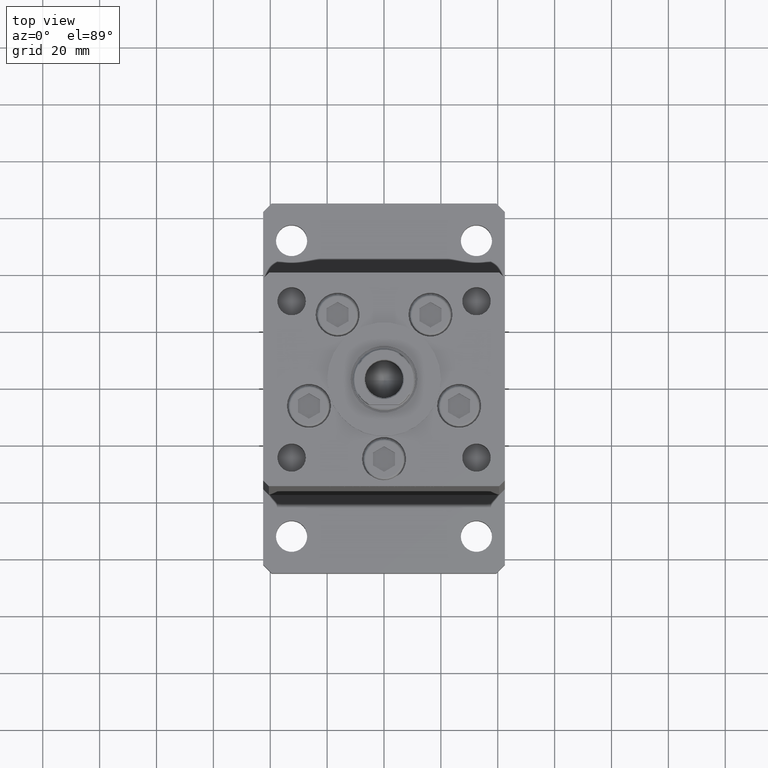
[diagram: clean part render]
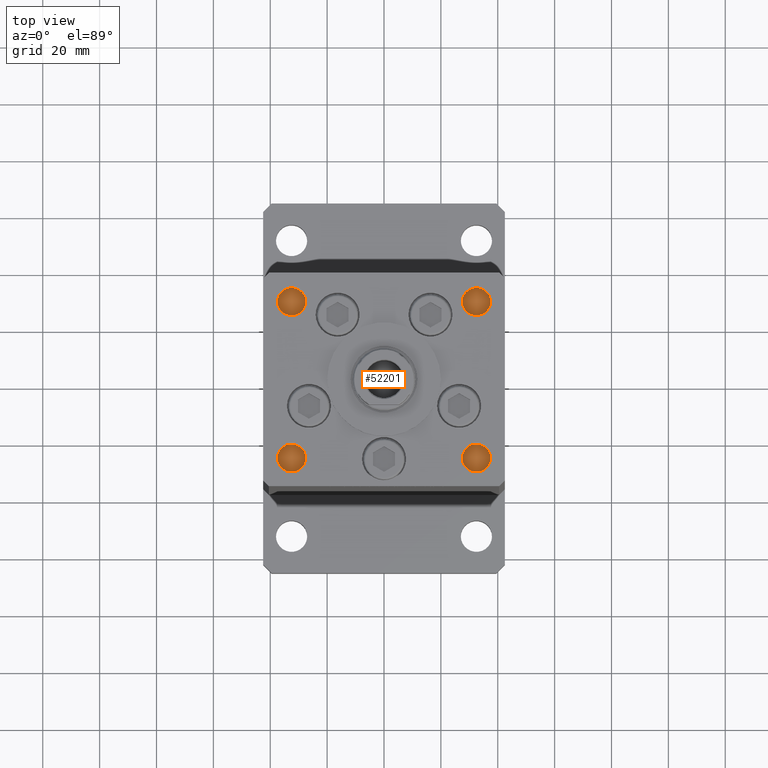
[diagram: same view with one face highlighted and labeled with its STEP entity id]
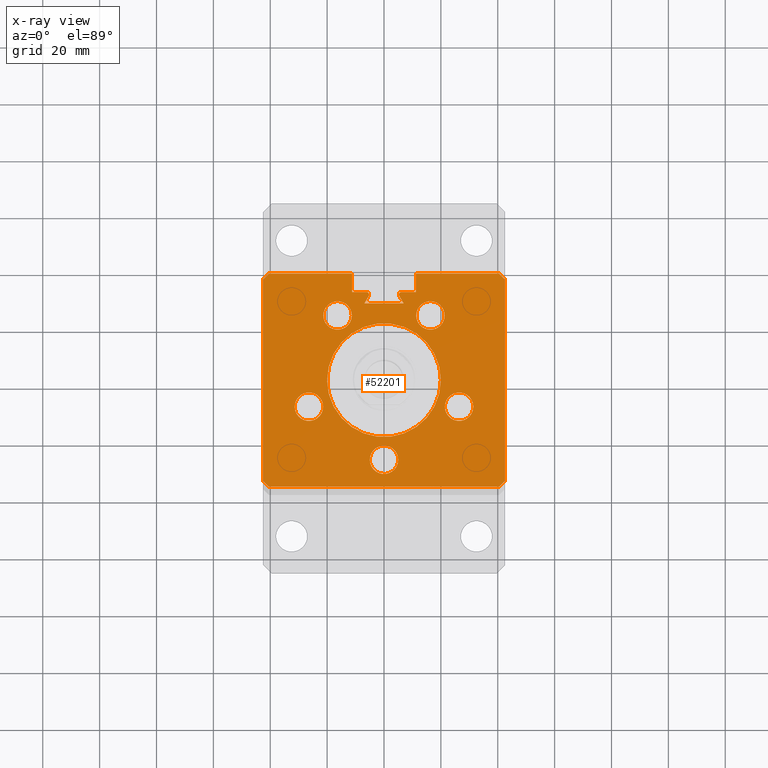
[diagram: x-ray of the same camera — body ghosted, the highlighted face saturated]
A machine part, top view. The second image highlights one B-rep face of the part: STEP entity #52201.
The next image is the same camera in x-ray: the body ghosted, the highlighted face saturated — about 0% of this face is hidden behind the body in this view.
In plain terms, the highlighted planar face has unit normal (0, 0, -1).
Its self-contained STEP definition (entity closure, byte-faithful):
#96 = VERTEX_POINT ( 'NONE', #39793 ) ;
#117 = VECTOR ( 'NONE', #47669, 1000.000000000000114 ) ;
#163 = CARTESIAN_POINT ( 'NONE',  ( 21.32291334290543006, 22.75000000000000355, 148.5000000000000000 ) ) ;
#352 = VERTEX_POINT ( 'NONE', #51078 ) ;
#760 = EDGE_CURVE ( 'NONE', #11827, #34986, #33820, .T. ) ;
#1173 = DIRECTION ( 'NONE',  ( 1.000000000000000000, 0.000000000000000000, 0.000000000000000000 ) ) ;
#1189 = AXIS2_PLACEMENT_3D ( 'NONE', #25039, #37401, #8299 ) ;
#1462 = VECTOR ( 'NONE', #8402, 1000.000000000000114 ) ;
#1502 = CARTESIAN_POINT ( 'NONE',  ( -26.39865316429777664, -9.333333333333333925, 148.5000000000000000 ) ) ;
#2123 = CARTESIAN_POINT ( 'NONE',  ( 40.50000000000000000, 37.50000000000000711, 148.5000000000000000 ) ) ;
#2842 = CARTESIAN_POINT ( 'NONE',  ( 0.000000000000000000, 30.99999999999999289, 148.5000000000000000 ) ) ;
#2861 = VECTOR ( 'NONE', #37732, 1000.000000000000000 ) ;
#3047 = FACE_BOUND ( 'NONE', #17282, .T. ) ;
#3194 = EDGE_CURVE ( 'NONE', #7995, #17505, #37386, .T. ) ;
#3312 = FACE_BOUND ( 'NONE', #6197, .T. ) ;
#3695 = CIRCLE ( 'NONE', #48455, 5.000000000000000888 ) ;
#3776 = AXIS2_PLACEMENT_3D ( 'NONE', #19921, #53023, #32537 ) ;
#4249 = CIRCLE ( 'NONE', #5156, 4.999999999999997335 ) ;
#4967 = EDGE_CURVE ( 'NONE', #28983, #96, #3695, .T. ) ;
#5156 = AXIS2_PLACEMENT_3D ( 'NONE', #10435, #13974, #10184 ) ;
#5272 = DIRECTION ( 'NONE',  ( 1.000000000000000000, 0.000000000000000000, 0.000000000000000000 ) ) ;
#5541 = CARTESIAN_POINT ( 'NONE',  ( -40.49999999999998579, -37.50000000000000711, 148.5000000000000000 ) ) ;
#5569 = EDGE_CURVE ( 'NONE', #15310, #50106, #47873, .T. ) ;
#5699 = LINE ( 'NONE', #29719, #45145 ) ;
#5866 = ORIENTED_EDGE ( 'NONE', *, *, #5569, .T. ) ;
#5980 = CARTESIAN_POINT ( 'NONE',  ( -6.183333333333999704, 30.06666666666599141, 148.5000000000000000 ) ) ;
#6159 = CARTESIAN_POINT ( 'NONE',  ( 11.25000000000000000, 0.000000000000000000, 148.5000000000000000 ) ) ;
#6197 = EDGE_LOOP ( 'NONE', ( #40715, #14524 ) ) ;
#6265 = DIRECTION ( 'NONE',  ( 1.000000000000000000, 0.000000000000000000, 0.000000000000000000 ) ) ;
#6373 = CIRCLE ( 'NONE', #23609, 5.000000000000000888 ) ;
#6374 = EDGE_CURVE ( 'NONE', #18564, #28897, #47345, .T. ) ;
#6643 = CARTESIAN_POINT ( 'NONE',  ( 6.876153656360465938, 26.99999999999986855, 148.5000000000000000 ) ) ;
#6834 = CARTESIAN_POINT ( 'NONE',  ( 0.000000000000000000, 0.000000000000000000, 148.5000000000000000 ) ) ;
#6910 = ORIENTED_EDGE ( 'NONE', *, *, #28361, .T. ) ;
#7024 = EDGE_CURVE ( 'NONE', #50630, #36550, #31332, .T. ) ;
#7255 = CARTESIAN_POINT ( 'NONE',  ( -42.50000000000000711, 35.50000000000001421, 148.5000000000000000 ) ) ;
#7455 = DIRECTION ( 'NONE',  ( 0.000000000000000000, 0.000000000000000000, 1.000000000000000000 ) ) ;
#7469 = CARTESIAN_POINT ( 'NONE',  ( -40.49999999999998579, -37.50000000000000711, 148.5000000000000000 ) ) ;
#7995 = VERTEX_POINT ( 'NONE', #28700 ) ;
#8299 = DIRECTION ( 'NONE',  ( 1.000000000000000000, 0.000000000000000000, 0.000000000000000000 ) ) ;
#8402 = DIRECTION ( 'NONE',  ( 0.5000000000000003331, 0.8660254037844384856, 0.000000000000000000 ) ) ;
#8510 = EDGE_CURVE ( 'NONE', #34986, #11827, #27077, .T. ) ;
#8625 = DIRECTION ( 'NONE',  ( 0.5000000000000003331, -0.8660254037844384856, 0.000000000000000000 ) ) ;
#8754 = CARTESIAN_POINT ( 'NONE',  ( -11.25000000000000000, 37.50000000000000000, 148.5000000000000000 ) ) ;
#8825 = ORIENTED_EDGE ( 'NONE', *, *, #51774, .F. ) ;
#9094 = VECTOR ( 'NONE', #14046, 1000.000000000000000 ) ;
#9199 = VERTEX_POINT ( 'NONE', #17889 ) ;
#9234 = DIRECTION ( 'NONE',  ( -0.7071067811865474617, -0.7071067811865474617, 0.000000000000000000 ) ) ;
#9299 = EDGE_CURVE ( 'NONE', #21915, #46979, #5699, .T. ) ;
#9474 = EDGE_LOOP ( 'NONE', ( #19247, #19723 ) ) ;
#9507 = CARTESIAN_POINT ( 'NONE',  ( -21.39865316429777664, -9.333333333333333925, 148.5000000000000000 ) ) ;
#9644 = CARTESIAN_POINT ( 'NONE',  ( -11.25000000000000000, 0.000000000000000000, 148.5000000000000000 ) ) ;
#9978 = EDGE_CURVE ( 'NONE', #20050, #9199, #20651, .T. ) ;
#10184 = DIRECTION ( 'NONE',  ( 1.000000000000000000, 0.000000000000000000, 0.000000000000000000 ) ) ;
#10435 = CARTESIAN_POINT ( 'NONE',  ( 26.39865316429777664, -9.333333333333326820, 148.5000000000000000 ) ) ;
#10475 = CIRCLE ( 'NONE', #17419, 20.00000000000000000 ) ;
#10562 = AXIS2_PLACEMENT_3D ( 'NONE', #26787, #34841, #6265 ) ;
#10627 = FACE_BOUND ( 'NONE', #27043, .T. ) ;
#10897 = DIRECTION ( 'NONE',  ( -1.000000000000000000, 0.000000000000000000, -0.000000000000000000 ) ) ;
#10995 = DIRECTION ( 'NONE',  ( 1.000000000000000000, 0.000000000000000000, 0.000000000000000000 ) ) ;
#11684 = CARTESIAN_POINT ( 'NONE',  ( -16.32291334290543361, 22.75000000000000000, 148.5000000000000000 ) ) ;
#11827 = VERTEX_POINT ( 'NONE', #37128 ) ;
#12005 = LINE ( 'NONE', #28450, #38791 ) ;
#12056 = DIRECTION ( 'NONE',  ( 0.7071067811865474617, -0.7071067811865474617, 0.000000000000000000 ) ) ;
#12080 = CARTESIAN_POINT ( 'NONE',  ( 0.000000000000000000, 0.000000000000000000, 148.5000000000000000 ) ) ;
#12210 = ORIENTED_EDGE ( 'NONE', *, *, #28047, .T. ) ;
#12426 = CARTESIAN_POINT ( 'NONE',  ( 3.429011037612589276E-15, -28.00000000000000000, 148.5000000000000000 ) ) ;
#12962 = DIRECTION ( 'NONE',  ( 1.000000000000000000, 0.000000000000000000, 0.000000000000000000 ) ) ;
#13087 = EDGE_CURVE ( 'NONE', #23950, #36550, #15502, .T. ) ;
#13221 = CARTESIAN_POINT ( 'NONE',  ( 40.50000000000000000, 37.50000000000000711, 148.5000000000000000 ) ) ;
#13319 = AXIS2_PLACEMENT_3D ( 'NONE', #24475, #15604, #10995 ) ;
#13428 = VECTOR ( 'NONE', #19290, 1000.000000000000000 ) ;
#13974 = DIRECTION ( 'NONE',  ( 0.000000000000000000, 0.000000000000000000, 1.000000000000000000 ) ) ;
#13982 = ORIENTED_EDGE ( 'NONE', *, *, #9978, .F. ) ;
#14046 = DIRECTION ( 'NONE',  ( -1.000000000000000000, 0.000000000000000000, 0.000000000000000000 ) ) ;
#14176 = EDGE_CURVE ( 'NONE', #50843, #35953, #25533, .T. ) ;
#14296 = CARTESIAN_POINT ( 'NONE',  ( 6.183333333333999704, 30.99999999999999289, 148.5000000000000000 ) ) ;
#14524 = ORIENTED_EDGE ( 'NONE', *, *, #42030, .F. ) ;
#14547 = CARTESIAN_POINT ( 'NONE',  ( 5.000000000000004441, -28.00000000000000000, 148.5000000000000000 ) ) ;
#15043 = DIRECTION ( 'NONE',  ( 0.000000000000000000, 0.000000000000000000, -1.000000000000000000 ) ) ;
#15310 = VERTEX_POINT ( 'NONE', #23146 ) ;
#15502 = LINE ( 'NONE', #36478, #13428 ) ;
#15582 = DIRECTION ( 'NONE',  ( 1.000000000000000000, 0.000000000000000000, 0.000000000000000000 ) ) ;
#15604 = DIRECTION ( 'NONE',  ( 0.000000000000000000, 0.000000000000000000, 1.000000000000000000 ) ) ;
#15708 = ORIENTED_EDGE ( 'NONE', *, *, #13087, .T. ) ;
#15981 = CARTESIAN_POINT ( 'NONE',  ( -16.84845819336021577, 9.727461873366683776, 148.5000000000000000 ) ) ;
#16519 = LINE ( 'NONE', #15981, #1462 ) ;
#16563 = ORIENTED_EDGE ( 'NONE', *, *, #3194, .F. ) ;
#17282 = EDGE_LOOP ( 'NONE', ( #32439, #49725 ) ) ;
#17419 = AXIS2_PLACEMENT_3D ( 'NONE', #12080, #20200, #35528 ) ;
#17505 = VERTEX_POINT ( 'NONE', #35690 ) ;
#17889 = CARTESIAN_POINT ( 'NONE',  ( -11.25000000000000000, 37.50000000000000000, 148.5000000000000000 ) ) ;
#18082 = DIRECTION ( 'NONE',  ( 0.000000000000000000, 0.000000000000000000, 1.000000000000000000 ) ) ;
#18269 = ORIENTED_EDGE ( 'NONE', *, *, #30055, .F. ) ;
#18522 = DIRECTION ( 'NONE',  ( 1.000000000000000000, 0.000000000000000000, 0.000000000000000000 ) ) ;
#18564 = VERTEX_POINT ( 'NONE', #24885 ) ;
#18665 = CIRCLE ( 'NONE', #48731, 5.000000000000000888 ) ;
#19073 = CARTESIAN_POINT ( 'NONE',  ( -5.249999999999997335, 30.06666666666599141, 148.5000000000000000 ) ) ;
#19247 = ORIENTED_EDGE ( 'NONE', *, *, #8510, .F. ) ;
#19290 = DIRECTION ( 'NONE',  ( -1.000000000000000000, 0.000000000000000000, 0.000000000000000000 ) ) ;
#19554 = FACE_BOUND ( 'NONE', #43640, .T. ) ;
#19723 = ORIENTED_EDGE ( 'NONE', *, *, #760, .F. ) ;
#19896 = CARTESIAN_POINT ( 'NONE',  ( -16.32291334290543361, 22.75000000000000000, 148.5000000000000000 ) ) ;
#19921 = CARTESIAN_POINT ( 'NONE',  ( 0.000000000000000000, 0.000000000000000000, 148.5000000000000000 ) ) ;
#20050 = VERTEX_POINT ( 'NONE', #51202 ) ;
#20100 = VERTEX_POINT ( 'NONE', #22935 ) ;
#20200 = DIRECTION ( 'NONE',  ( -0.000000000000000000, 0.000000000000000000, 1.000000000000000000 ) ) ;
#20450 = VECTOR ( 'NONE', #51417, 1000.000000000000000 ) ;
#20527 = LINE ( 'NONE', #21334, #48258 ) ;
#20633 = CARTESIAN_POINT ( 'NONE',  ( 6.183333333333999704, 30.06666666666599141, 148.5000000000000000 ) ) ;
#20651 = LINE ( 'NONE', #8754, #34828 ) ;
#20823 = EDGE_CURVE ( 'NONE', #38437, #35953, #16519, .T. ) ;
#21037 = AXIS2_PLACEMENT_3D ( 'NONE', #20633, #15043, #41338 ) ;
#21334 = CARTESIAN_POINT ( 'NONE',  ( 16.84845819336021577, 9.727461873366683776, 148.5000000000000000 ) ) ;
#21348 = EDGE_CURVE ( 'NONE', #34563, #26512, #35229, .T. ) ;
#21413 = ORIENTED_EDGE ( 'NONE', *, *, #14176, .F. ) ;
#21756 = EDGE_CURVE ( 'NONE', #41728, #21915, #49103, .T. ) ;
#21819 = EDGE_LOOP ( 'NONE', ( #44440, #35223 ) ) ;
#21915 = VERTEX_POINT ( 'NONE', #48767 ) ;
#22335 = CARTESIAN_POINT ( 'NONE',  ( -11.25000000000000000, 37.50000000000000000, 148.5000000000000000 ) ) ;
#22425 = CARTESIAN_POINT ( 'NONE',  ( -6.876153656360465938, 26.99999999999986855, 148.5000000000000000 ) ) ;
#22466 = DIRECTION ( 'NONE',  ( 1.000000000000000000, 0.000000000000000000, 0.000000000000000000 ) ) ;
#22669 = CARTESIAN_POINT ( 'NONE',  ( 0.000000000000000000, 26.99999999999986855, 148.5000000000000000 ) ) ;
#22791 = FACE_BOUND ( 'NONE', #9474, .T. ) ;
#22935 = CARTESIAN_POINT ( 'NONE',  ( -31.39865316429778375, -9.333333333333333925, 148.5000000000000000 ) ) ;
#23146 = CARTESIAN_POINT ( 'NONE',  ( -6.183333333333999704, 30.99999999999999289, 148.5000000000000000 ) ) ;
#23301 = CARTESIAN_POINT ( 'NONE',  ( -11.25000000000000000, 30.99999999999999289, 148.5000000000000000 ) ) ;
#23316 = DIRECTION ( 'NONE',  ( 0.000000000000000000, 0.000000000000000000, -1.000000000000000000 ) ) ;
#23374 = DIRECTION ( 'NONE',  ( 1.000000000000000000, 0.000000000000000000, 0.000000000000000000 ) ) ;
#23609 = AXIS2_PLACEMENT_3D ( 'NONE', #11684, #53178, #24360 ) ;
#23950 = VERTEX_POINT ( 'NONE', #43157 ) ;
#24360 = DIRECTION ( 'NONE',  ( 1.000000000000000000, 0.000000000000000000, 0.000000000000000000 ) ) ;
#24431 = VECTOR ( 'NONE', #38733, 1000.000000000000000 ) ;
#24475 = CARTESIAN_POINT ( 'NONE',  ( 16.32291334290542650, 22.75000000000000355, 148.5000000000000000 ) ) ;
#24885 = CARTESIAN_POINT ( 'NONE',  ( 11.24999999999999289, 37.50000000000000000, 148.5000000000000000 ) ) ;
#25039 = CARTESIAN_POINT ( 'NONE',  ( 26.39865316429777664, -9.333333333333326820, 148.5000000000000000 ) ) ;
#25197 = VERTEX_POINT ( 'NONE', #31766 ) ;
#25419 = EDGE_CURVE ( 'NONE', #48500, #352, #4249, .T. ) ;
#25533 = CIRCLE ( 'NONE', #40134, 0.9333333333340015914 ) ;
#25561 = CARTESIAN_POINT ( 'NONE',  ( -5.375042956467944499, 29.59999999999899600, 148.4999999999999716 ) ) ;
#26167 = LINE ( 'NONE', #2123, #117 ) ;
#26183 = LINE ( 'NONE', #22669, #9094 ) ;
#26377 = VERTEX_POINT ( 'NONE', #38779 ) ;
#26512 = VERTEX_POINT ( 'NONE', #50844 ) ;
#26787 = CARTESIAN_POINT ( 'NONE',  ( 16.32291334290542650, 22.75000000000000355, 148.5000000000000000 ) ) ;
#27026 = AXIS2_PLACEMENT_3D ( 'NONE', #42042, #18082, #30437 ) ;
#27043 = EDGE_LOOP ( 'NONE', ( #45784, #8825 ) ) ;
#27077 = CIRCLE ( 'NONE', #13319, 5.000000000000000888 ) ;
#27080 = FACE_OUTER_BOUND ( 'NONE', #29484, .T. ) ;
#27868 = CIRCLE ( 'NONE', #1189, 4.999999999999997335 ) ;
#28047 = EDGE_CURVE ( 'NONE', #50630, #45034, #20527, .T. ) ;
#28361 = EDGE_CURVE ( 'NONE', #20050, #34563, #12005, .T. ) ;
#28450 = CARTESIAN_POINT ( 'NONE',  ( -40.50000000000000000, 37.50000000000000711, 148.5000000000000000 ) ) ;
#28700 = CARTESIAN_POINT ( 'NONE',  ( -20.00000000000000000, 0.000000000000000000, 148.5000000000000000 ) ) ;
#28865 = DIRECTION ( 'NONE',  ( 0.000000000000000000, 0.000000000000000000, 1.000000000000000000 ) ) ;
#28897 = VERTEX_POINT ( 'NONE', #13221 ) ;
#28983 = VERTEX_POINT ( 'NONE', #14547 ) ;
#29222 = CARTESIAN_POINT ( 'NONE',  ( 21.39865316429778019, -9.333333333333326820, 148.5000000000000000 ) ) ;
#29484 = EDGE_LOOP ( 'NONE', ( #5866, #42406, #13982, #6910, #51429, #33581, #35560, #52663, #31976, #36083, #53201, #50449, #15708, #29991, #12210, #42942, #42221, #21413, #53071 ) ) ;
#29493 = VECTOR ( 'NONE', #46556, 1000.000000000000000 ) ;
#29719 = CARTESIAN_POINT ( 'NONE',  ( 42.49999999999998579, -35.50000000000000711, 148.5000000000000000 ) ) ;
#29991 = ORIENTED_EDGE ( 'NONE', *, *, #7024, .F. ) ;
#30055 = EDGE_CURVE ( 'NONE', #17505, #7995, #10475, .T. ) ;
#30324 = CIRCLE ( 'NONE', #48403, 5.000000000000000888 ) ;
#30377 = CARTESIAN_POINT ( 'NONE',  ( 40.49999999999998579, -37.50000000000000711, 148.5000000000000000 ) ) ;
#30437 = DIRECTION ( 'NONE',  ( 1.000000000000000000, 0.000000000000000000, 0.000000000000000000 ) ) ;
#31028 = EDGE_CURVE ( 'NONE', #28897, #41728, #26167, .T. ) ;
#31332 = CIRCLE ( 'NONE', #21037, 0.9333333333340015914 ) ;
#31766 = CARTESIAN_POINT ( 'NONE',  ( -21.32291334290543716, 22.75000000000000000, 148.5000000000000000 ) ) ;
#31976 = ORIENTED_EDGE ( 'NONE', *, *, #21756, .F. ) ;
#32221 = CARTESIAN_POINT ( 'NONE',  ( -26.39865316429777664, -9.333333333333333925, 148.5000000000000000 ) ) ;
#32439 = ORIENTED_EDGE ( 'NONE', *, *, #41173, .F. ) ;
#32537 = DIRECTION ( 'NONE',  ( 1.000000000000000000, 0.000000000000000000, 0.000000000000000000 ) ) ;
#33059 = CARTESIAN_POINT ( 'NONE',  ( -42.49999999999998579, -35.50000000000000711, 148.5000000000000000 ) ) ;
#33140 = EDGE_CURVE ( 'NONE', #26377, #25197, #30324, .T. ) ;
#33476 = VERTEX_POINT ( 'NONE', #5541 ) ;
#33581 = ORIENTED_EDGE ( 'NONE', *, *, #52652, .T. ) ;
#33820 = CIRCLE ( 'NONE', #10562, 5.000000000000000888 ) ;
#34417 = DIRECTION ( 'NONE',  ( -1.000000000000000000, 0.000000000000000000, 0.000000000000000000 ) ) ;
#34563 = VERTEX_POINT ( 'NONE', #7255 ) ;
#34695 = VECTOR ( 'NONE', #37840, 1000.000000000000000 ) ;
#34828 = VECTOR ( 'NONE', #1173, 1000.000000000000000 ) ;
#34841 = DIRECTION ( 'NONE',  ( 0.000000000000000000, 0.000000000000000000, 1.000000000000000000 ) ) ;
#34921 = CIRCLE ( 'NONE', #51286, 5.000000000000000888 ) ;
#34986 = VERTEX_POINT ( 'NONE', #163 ) ;
#35223 = ORIENTED_EDGE ( 'NONE', *, *, #40145, .F. ) ;
#35229 = LINE ( 'NONE', #47899, #20450 ) ;
#35528 = DIRECTION ( 'NONE',  ( 1.000000000000000000, 0.000000000000000000, 0.000000000000000000 ) ) ;
#35560 = ORIENTED_EDGE ( 'NONE', *, *, #38965, .T. ) ;
#35690 = CARTESIAN_POINT ( 'NONE',  ( 20.00000000000000000, 2.449293598294706513E-15, 148.5000000000000000 ) ) ;
#35693 = CIRCLE ( 'NONE', #45205, 0.9333333333340015914 ) ;
#35794 = CARTESIAN_POINT ( 'NONE',  ( 5.375042956467944499, 29.59999999999899245, 148.5000000000000000 ) ) ;
#35953 = VERTEX_POINT ( 'NONE', #25561 ) ;
#36083 = ORIENTED_EDGE ( 'NONE', *, *, #31028, .F. ) ;
#36209 = PLANE ( 'NONE',  #51319 ) ;
#36478 = CARTESIAN_POINT ( 'NONE',  ( 0.000000000000000000, 30.99999999999999289, 148.5000000000000000 ) ) ;
#36550 = VERTEX_POINT ( 'NONE', #14296 ) ;
#36738 = EDGE_CURVE ( 'NONE', #50106, #9199, #47085, .T. ) ;
#37128 = CARTESIAN_POINT ( 'NONE',  ( 11.32291334290542650, 22.75000000000000355, 148.5000000000000000 ) ) ;
#37326 = CIRCLE ( 'NONE', #27026, 5.000000000000000888 ) ;
#37386 = CIRCLE ( 'NONE', #3776, 20.00000000000000000 ) ;
#37401 = DIRECTION ( 'NONE',  ( 0.000000000000000000, 0.000000000000000000, 1.000000000000000000 ) ) ;
#37644 = VECTOR ( 'NONE', #48835, 1000.000000000000000 ) ;
#37732 = DIRECTION ( 'NONE',  ( -0.000000000000000000, -1.000000000000000000, 0.000000000000000000 ) ) ;
#37840 = DIRECTION ( 'NONE',  ( 1.000000000000000000, 0.000000000000000000, 0.000000000000000000 ) ) ;
#38437 = VERTEX_POINT ( 'NONE', #22425 ) ;
#38733 = DIRECTION ( 'NONE',  ( 1.000000000000000000, 0.000000000000000000, 0.000000000000000000 ) ) ;
#38779 = CARTESIAN_POINT ( 'NONE',  ( -11.32291334290543361, 22.75000000000000000, 148.5000000000000000 ) ) ;
#38791 = VECTOR ( 'NONE', #44868, 1000.000000000000114 ) ;
#38965 = EDGE_CURVE ( 'NONE', #33476, #46979, #41890, .T. ) ;
#39793 = CARTESIAN_POINT ( 'NONE',  ( -4.999999999999997335, -28.00000000000000000, 148.5000000000000000 ) ) ;
#39840 = DIRECTION ( 'NONE',  ( 0.000000000000000000, 0.000000000000000000, -1.000000000000000000 ) ) ;
#40134 = AXIS2_PLACEMENT_3D ( 'NONE', #42196, #45979, #5272 ) ;
#40145 = EDGE_CURVE ( 'NONE', #96, #28983, #37326, .T. ) ;
#40187 = EDGE_CURVE ( 'NONE', #18564, #23950, #43080, .T. ) ;
#40715 = ORIENTED_EDGE ( 'NONE', *, *, #33140, .F. ) ;
#40723 = VERTEX_POINT ( 'NONE', #9507 ) ;
#41173 = EDGE_CURVE ( 'NONE', #352, #48500, #27868, .T. ) ;
#41338 = DIRECTION ( 'NONE',  ( 1.000000000000000000, 0.000000000000000000, 0.000000000000000000 ) ) ;
#41728 = VERTEX_POINT ( 'NONE', #44076 ) ;
#41865 = VECTOR ( 'NONE', #12056, 1000.000000000000114 ) ;
#41890 = LINE ( 'NONE', #7469, #34695 ) ;
#42030 = EDGE_CURVE ( 'NONE', #25197, #26377, #6373, .T. ) ;
#42042 = CARTESIAN_POINT ( 'NONE',  ( 3.429011037612589276E-15, -28.00000000000000000, 148.5000000000000000 ) ) ;
#42196 = CARTESIAN_POINT ( 'NONE',  ( -6.183333333333999704, 30.06666666666599141, 148.5000000000000000 ) ) ;
#42221 = ORIENTED_EDGE ( 'NONE', *, *, #20823, .T. ) ;
#42406 = ORIENTED_EDGE ( 'NONE', *, *, #36738, .T. ) ;
#42739 = DIRECTION ( 'NONE',  ( 0.000000000000000000, 0.000000000000000000, 1.000000000000000000 ) ) ;
#42942 = ORIENTED_EDGE ( 'NONE', *, *, #45931, .T. ) ;
#43080 = LINE ( 'NONE', #6159, #2861 ) ;
#43157 = CARTESIAN_POINT ( 'NONE',  ( 11.25000000000000000, 30.99999999999999289, 148.5000000000000000 ) ) ;
#43640 = EDGE_LOOP ( 'NONE', ( #16563, #18269 ) ) ;
#44076 = CARTESIAN_POINT ( 'NONE',  ( 42.50000000000000711, 35.50000000000001421, 148.5000000000000000 ) ) ;
#44440 = ORIENTED_EDGE ( 'NONE', *, *, #4967, .F. ) ;
#44699 = EDGE_CURVE ( 'NONE', #15310, #50843, #35693, .T. ) ;
#44868 = DIRECTION ( 'NONE',  ( -0.7071067811865500152, -0.7071067811865451302, 0.000000000000000000 ) ) ;
#45034 = VERTEX_POINT ( 'NONE', #6643 ) ;
#45145 = VECTOR ( 'NONE', #9234, 1000.000000000000114 ) ;
#45205 = AXIS2_PLACEMENT_3D ( 'NONE', #5980, #39840, #22466 ) ;
#45727 = LINE ( 'NONE', #33059, #41865 ) ;
#45784 = ORIENTED_EDGE ( 'NONE', *, *, #52768, .F. ) ;
#45858 = CARTESIAN_POINT ( 'NONE',  ( 42.50000000000000711, 35.50000000000001421, 148.5000000000000000 ) ) ;
#45931 = EDGE_CURVE ( 'NONE', #45034, #38437, #26183, .T. ) ;
#45979 = DIRECTION ( 'NONE',  ( 0.000000000000000000, 0.000000000000000000, -1.000000000000000000 ) ) ;
#46556 = DIRECTION ( 'NONE',  ( 0.000000000000000000, 1.000000000000000000, 0.000000000000000000 ) ) ;
#46979 = VERTEX_POINT ( 'NONE', #30377 ) ;
#47085 = LINE ( 'NONE', #9644, #29493 ) ;
#47345 = LINE ( 'NONE', #22335, #24431 ) ;
#47606 = DIRECTION ( 'NONE',  ( 0.000000000000000000, 0.000000000000000000, 1.000000000000000000 ) ) ;
#47669 = DIRECTION ( 'NONE',  ( 0.7071067811865500152, -0.7071067811865451302, 0.000000000000000000 ) ) ;
#47873 = LINE ( 'NONE', #2842, #52754 ) ;
#47899 = CARTESIAN_POINT ( 'NONE',  ( -42.50000000000000711, 35.50000000000001421, 148.5000000000000000 ) ) ;
#48258 = VECTOR ( 'NONE', #8625, 1000.000000000000114 ) ;
#48403 = AXIS2_PLACEMENT_3D ( 'NONE', #19896, #7455, #15582 ) ;
#48455 = AXIS2_PLACEMENT_3D ( 'NONE', #12426, #28865, #12962 ) ;
#48500 = VERTEX_POINT ( 'NONE', #29222 ) ;
#48731 = AXIS2_PLACEMENT_3D ( 'NONE', #1502, #42739, #18522 ) ;
#48767 = CARTESIAN_POINT ( 'NONE',  ( 42.49999999999998579, -35.50000000000000711, 148.5000000000000000 ) ) ;
#48835 = DIRECTION ( 'NONE',  ( -2.931927001650941360E-16, -1.000000000000000000, 0.000000000000000000 ) ) ;
#49103 = LINE ( 'NONE', #45858, #37644 ) ;
#49725 = ORIENTED_EDGE ( 'NONE', *, *, #25419, .F. ) ;
#50106 = VERTEX_POINT ( 'NONE', #23301 ) ;
#50449 = ORIENTED_EDGE ( 'NONE', *, *, #40187, .T. ) ;
#50630 = VERTEX_POINT ( 'NONE', #35794 ) ;
#50843 = VERTEX_POINT ( 'NONE', #19073 ) ;
#50844 = CARTESIAN_POINT ( 'NONE',  ( -42.49999999999998579, -35.50000000000000711, 148.5000000000000000 ) ) ;
#51078 = CARTESIAN_POINT ( 'NONE',  ( 31.39865316429777664, -9.333333333333326820, 148.5000000000000000 ) ) ;
#51202 = CARTESIAN_POINT ( 'NONE',  ( -40.50000000000000000, 37.50000000000000711, 148.5000000000000000 ) ) ;
#51286 = AXIS2_PLACEMENT_3D ( 'NONE', #32221, #47606, #23374 ) ;
#51319 = AXIS2_PLACEMENT_3D ( 'NONE', #6834, #23316, #10897 ) ;
#51417 = DIRECTION ( 'NONE',  ( 2.931927001650941360E-16, -1.000000000000000000, 0.000000000000000000 ) ) ;
#51429 = ORIENTED_EDGE ( 'NONE', *, *, #21348, .T. ) ;
#51774 = EDGE_CURVE ( 'NONE', #20100, #40723, #34921, .T. ) ;
#51850 = FACE_BOUND ( 'NONE', #21819, .T. ) ;
#52201 = ADVANCED_FACE ( 'NONE', ( #10627, #51850, #3047, #22791, #3312, #27080, #19554 ), #36209, .F. ) ;
#52652 = EDGE_CURVE ( 'NONE', #26512, #33476, #45727, .T. ) ;
#52663 = ORIENTED_EDGE ( 'NONE', *, *, #9299, .F. ) ;
#52754 = VECTOR ( 'NONE', #34417, 1000.000000000000000 ) ;
#52768 = EDGE_CURVE ( 'NONE', #40723, #20100, #18665, .T. ) ;
#53023 = DIRECTION ( 'NONE',  ( -0.000000000000000000, 0.000000000000000000, 1.000000000000000000 ) ) ;
#53071 = ORIENTED_EDGE ( 'NONE', *, *, #44699, .F. ) ;
#53178 = DIRECTION ( 'NONE',  ( 0.000000000000000000, 0.000000000000000000, 1.000000000000000000 ) ) ;
#53201 = ORIENTED_EDGE ( 'NONE', *, *, #6374, .F. ) ;